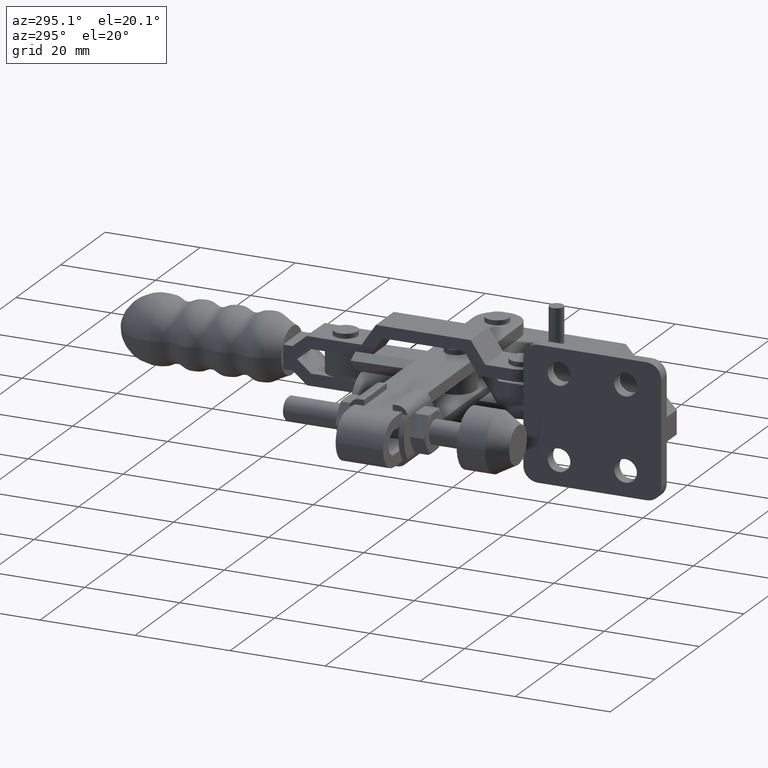
[diagram: clean part render]
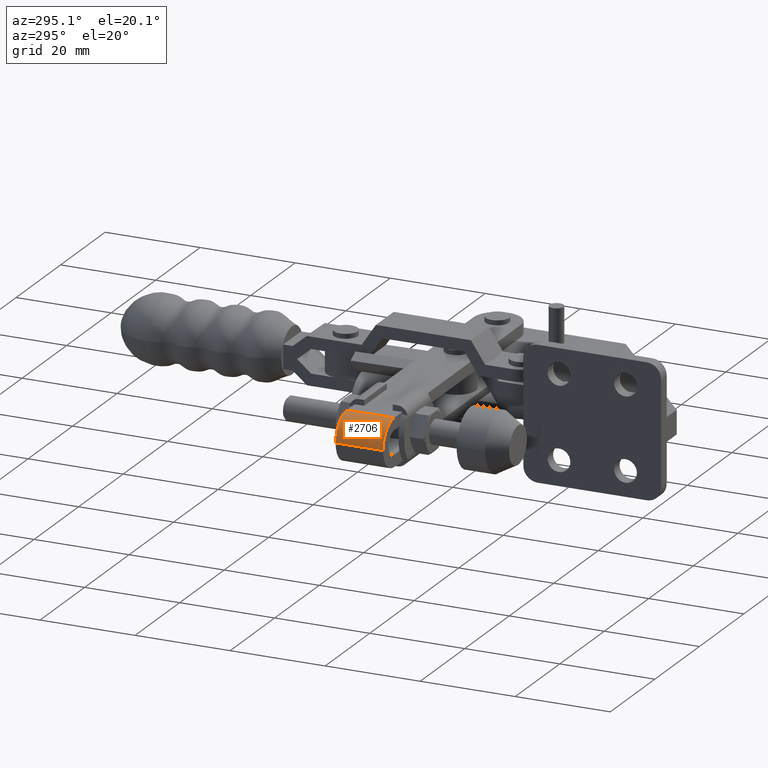
[diagram: same view with one face highlighted and labeled with its STEP entity id]
A machine part, auxiliary view. The second image highlights one B-rep face of the part: STEP entity #2706.
In plain terms, the highlighted cylindrical surface (edge-blend (fillet) strip) has radius 5 mm, axis along (0, 1, 0).
Its self-contained STEP definition (entity closure, byte-faithful):
#20 = CARTESIAN_POINT ( 'NONE',  ( -67.00000000000000000, 21.99999999999998600, 2.239953054969061900E-016 ) ) ;
#263 = VECTOR ( 'NONE', #4228, 1000.000000000000000 ) ;
#282 = DIRECTION ( 'NONE',  ( 0.0000000000000000000, -1.000000000000000000, -9.951337725666447200E-016 ) ) ;
#729 = CYLINDRICAL_SURFACE ( 'NONE', #8734, 4.999999999999997300 ) ;
#761 = DIRECTION ( 'NONE',  ( -1.000000000000000000, 0.0000000000000000000, -1.243495625872096800E-015 ) ) ;
#1378 = CARTESIAN_POINT ( 'NONE',  ( -62.00000000000000700, 21.99999999999998600, 1.465804572024167400E-015 ) ) ;
#1403 = CARTESIAN_POINT ( 'NONE',  ( -62.00000000000001400, 31.99999999999997900, 5.000000000000016000 ) ) ;
#1483 = EDGE_CURVE ( 'NONE', #3124, #6976, #7602, .T. ) ;
#2139 = EDGE_CURVE ( 'NONE', #8691, #8999, #8726, .T. ) ;
#2420 = DIRECTION ( 'NONE',  ( 0.0000000000000000000, 1.000000000000000000, 9.951337725666447200E-016 ) ) ;
#2618 = EDGE_LOOP ( 'NONE', ( #2848, #8601, #8367, #9244 ) ) ;
#2706 = ADVANCED_FACE ( 'NONE', ( #3060 ), #729, .T. ) ;
#2848 = ORIENTED_EDGE ( 'NONE', *, *, #2139, .F. ) ;
#2954 = CARTESIAN_POINT ( 'NONE',  ( -62.00000000000000700, 31.99999999999998600, 1.141714229769061200E-014 ) ) ;
#3060 = FACE_OUTER_BOUND ( 'NONE', #2618, .T. ) ;
#3124 = VERTEX_POINT ( 'NONE', #6323 ) ;
#3181 = DIRECTION ( 'NONE',  ( 0.0000000000000000000, 1.000000000000000000, 9.951337725666447200E-016 ) ) ;
#3333 = CARTESIAN_POINT ( 'NONE',  ( -62.00000000000001400, 21.99999999999998200, 5.000000000000006200 ) ) ;
#3745 = DIRECTION ( 'NONE',  ( 1.000000000000000000, 0.0000000000000000000, 1.243495625872095200E-015 ) ) ;
#4026 = CIRCLE ( 'NONE', #7584, 5.000000000000004400 ) ;
#4090 = CIRCLE ( 'NONE', #9559, 5.000000000000004400 ) ;
#4228 = DIRECTION ( 'NONE',  ( 0.0000000000000000000, 1.000000000000000000, 9.951337725666447200E-016 ) ) ;
#4998 = CARTESIAN_POINT ( 'NONE',  ( -62.00000000000000700, 21.99999999999998600, 1.465804572024167400E-015 ) ) ;
#5803 = DIRECTION ( 'NONE',  ( 1.000000000000000000, 0.0000000000000000000, 1.243495625872095200E-015 ) ) ;
#6323 = CARTESIAN_POINT ( 'NONE',  ( -62.00000000000001400, 21.99999999999998200, 5.000000000000006200 ) ) ;
#6891 = EDGE_CURVE ( 'NONE', #6976, #8999, #4090, .T. ) ;
#6976 = VERTEX_POINT ( 'NONE', #1403 ) ;
#7470 = CARTESIAN_POINT ( 'NONE',  ( -67.00000000000000000, 31.99999999999998600, 2.239953054968987000E-016 ) ) ;
#7584 = AXIS2_PLACEMENT_3D ( 'NONE', #4998, #282, #5803 ) ;
#7602 = LINE ( 'NONE', #3333, #9708 ) ;
#8367 = ORIENTED_EDGE ( 'NONE', *, *, #1483, .T. ) ;
#8574 = DIRECTION ( 'NONE',  ( 0.0000000000000000000, -1.000000000000000000, -9.951337725666447200E-016 ) ) ;
#8601 = ORIENTED_EDGE ( 'NONE', *, *, #8931, .F. ) ;
#8691 = VERTEX_POINT ( 'NONE', #20 ) ;
#8722 = CARTESIAN_POINT ( 'NONE',  ( -67.00000000000000000, 21.99999999999998600, -4.751673557336312900E-015 ) ) ;
#8726 = LINE ( 'NONE', #8722, #263 ) ;
#8734 = AXIS2_PLACEMENT_3D ( 'NONE', #1378, #2420, #761 ) ;
#8931 = EDGE_CURVE ( 'NONE', #3124, #8691, #4026, .T. ) ;
#8999 = VERTEX_POINT ( 'NONE', #7470 ) ;
#9244 = ORIENTED_EDGE ( 'NONE', *, *, #6891, .T. ) ;
#9559 = AXIS2_PLACEMENT_3D ( 'NONE', #2954, #8574, #3745 ) ;
#9708 = VECTOR ( 'NONE', #3181, 1000.000000000000000 ) ;